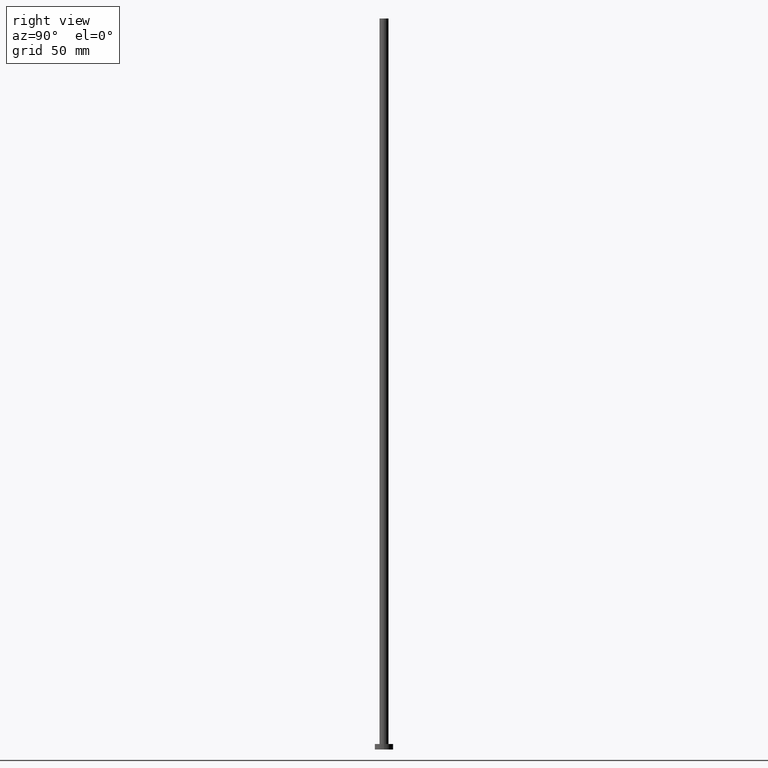
[diagram: clean part render]
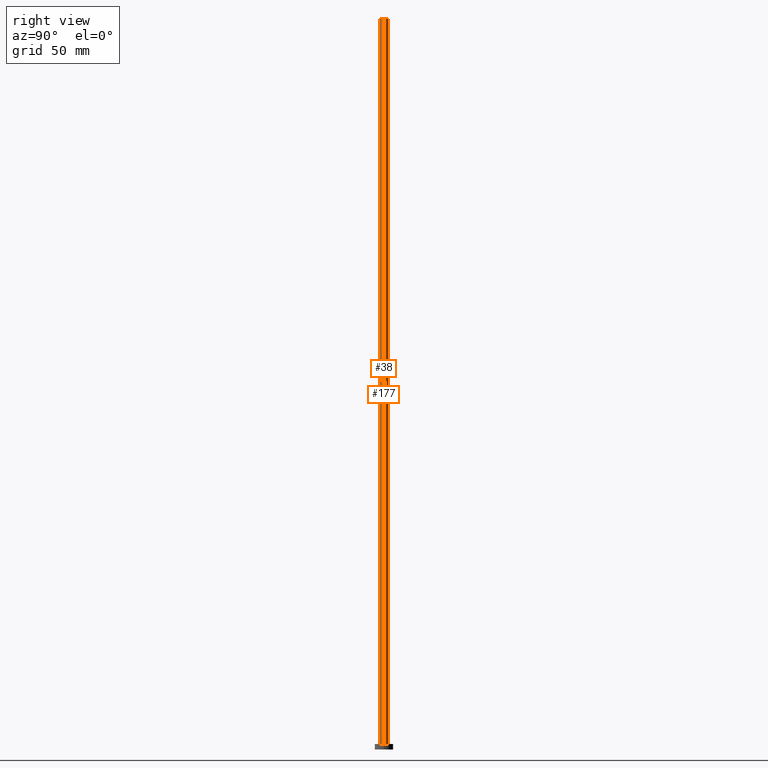
[diagram: same view with one multi-face feature highlighted, each face labeled with its STEP entity id]
A machine part, right view. The highlighted faces form ONE feature: a constant-radius fillet chain: 2 tangent blend faces with common blend radius 2.5 mm. The faces share edges in the B-rep.
Their STEP definitions:
[1] entity #38 (Cylinder):
#12 = CARTESIAN_POINT ( 'NONE',  ( 2.500000000000000000, 3.061616997868383141E-16, 400.0000000000000000 ) ) ;
#25 = LINE ( 'NONE', #45, #145 ) ;
#26 = DIRECTION ( 'NONE',  ( -0.000000000000000000, -0.000000000000000000, -1.000000000000000000 ) ) ;
#33 = AXIS2_PLACEMENT_3D ( 'NONE', #92, #198, #194 ) ;
#38 = ADVANCED_FACE ( 'NONE', ( #132 ), #207, .T. ) ;
#45 = CARTESIAN_POINT ( 'NONE',  ( -2.500000000000000000, 0.000000000000000000, 400.0000000000000000 ) ) ;
#48 = ORIENTED_EDGE ( 'NONE', *, *, #191, .F. ) ;
#54 = EDGE_LOOP ( 'NONE', ( #233, #48, #143, #172 ) ) ;
#80 = CIRCLE ( 'NONE', #33, 2.500000000000000000 ) ;
#82 = CARTESIAN_POINT ( 'NONE',  ( -2.500000000000000000, 0.000000000000000000, 400.0000000000000000 ) ) ;
#87 = EDGE_CURVE ( 'NONE', #126, #93, #80, .T. ) ;
#92 = CARTESIAN_POINT ( 'NONE',  ( 0.000000000000000000, 0.000000000000000000, 3.000000000000000000 ) ) ;
#93 = VERTEX_POINT ( 'NONE', #179 ) ;
#98 = AXIS2_PLACEMENT_3D ( 'NONE', #237, #144, #253 ) ;
#100 = CARTESIAN_POINT ( 'NONE',  ( -2.500000000000000000, 0.000000000000000000, 3.000000000000000000 ) ) ;
#110 = EDGE_CURVE ( 'NONE', #204, #126, #25, .T. ) ;
#111 = DIRECTION ( 'NONE',  ( -1.000000000000000000, 0.000000000000000000, 0.000000000000000000 ) ) ;
#126 = VERTEX_POINT ( 'NONE', #100 ) ;
#132 = FACE_OUTER_BOUND ( 'NONE', #54, .T. ) ;
#140 = CARTESIAN_POINT ( 'NONE',  ( 2.500000000000000000, 3.061616997868383141E-16, 400.0000000000000000 ) ) ;
#143 = ORIENTED_EDGE ( 'NONE', *, *, #110, .T. ) ;
#144 = DIRECTION ( 'NONE',  ( 0.000000000000000000, 0.000000000000000000, 1.000000000000000000 ) ) ;
#145 = VECTOR ( 'NONE', #165, 1000.000000000000000 ) ;
#151 = EDGE_CURVE ( 'NONE', #248, #93, #180, .T. ) ;
#164 = AXIS2_PLACEMENT_3D ( 'NONE', #188, #228, #111 ) ;
#165 = DIRECTION ( 'NONE',  ( -0.000000000000000000, -0.000000000000000000, -1.000000000000000000 ) ) ;
#172 = ORIENTED_EDGE ( 'NONE', *, *, #87, .T. ) ;
#179 = CARTESIAN_POINT ( 'NONE',  ( 2.500000000000000000, 3.061616997868383141E-16, 3.000000000000000000 ) ) ;
#180 = LINE ( 'NONE', #140, #201 ) ;
#188 = CARTESIAN_POINT ( 'NONE',  ( 0.000000000000000000, 0.000000000000000000, 400.0000000000000000 ) ) ;
#191 = EDGE_CURVE ( 'NONE', #204, #248, #209, .T. ) ;
#194 = DIRECTION ( 'NONE',  ( 1.000000000000000000, 0.000000000000000000, 0.000000000000000000 ) ) ;
#198 = DIRECTION ( 'NONE',  ( 0.000000000000000000, 0.000000000000000000, 1.000000000000000000 ) ) ;
#201 = VECTOR ( 'NONE', #26, 1000.000000000000000 ) ;
#204 = VERTEX_POINT ( 'NONE', #82 ) ;
#207 = CYLINDRICAL_SURFACE ( 'NONE', #164, 2.500000000000000000 ) ;
#209 = CIRCLE ( 'NONE', #98, 2.500000000000000000 ) ;
#228 = DIRECTION ( 'NONE',  ( -0.000000000000000000, -0.000000000000000000, -1.000000000000000000 ) ) ;
#233 = ORIENTED_EDGE ( 'NONE', *, *, #151, .F. ) ;
#237 = CARTESIAN_POINT ( 'NONE',  ( 0.000000000000000000, 0.000000000000000000, 400.0000000000000000 ) ) ;
#248 = VERTEX_POINT ( 'NONE', #12 ) ;
#253 = DIRECTION ( 'NONE',  ( 1.000000000000000000, 0.000000000000000000, 0.000000000000000000 ) ) ;
[2] entity #177 (Cylinder):
#5 = CYLINDRICAL_SURFACE ( 'NONE', #163, 2.500000000000000000 ) ;
#9 = EDGE_LOOP ( 'NONE', ( #31, #101, #11, #219 ) ) ;
#11 = ORIENTED_EDGE ( 'NONE', *, *, #19, .T. ) ;
#12 = CARTESIAN_POINT ( 'NONE',  ( 2.500000000000000000, 3.061616997868383141E-16, 400.0000000000000000 ) ) ;
#16 = DIRECTION ( 'NONE',  ( 1.000000000000000000, 0.000000000000000000, 0.000000000000000000 ) ) ;
#19 = EDGE_CURVE ( 'NONE', #93, #126, #141, .T. ) ;
#25 = LINE ( 'NONE', #45, #145 ) ;
#26 = DIRECTION ( 'NONE',  ( -0.000000000000000000, -0.000000000000000000, -1.000000000000000000 ) ) ;
#30 = DIRECTION ( 'NONE',  ( 1.000000000000000000, 0.000000000000000000, 0.000000000000000000 ) ) ;
#31 = ORIENTED_EDGE ( 'NONE', *, *, #162, .F. ) ;
#35 = CARTESIAN_POINT ( 'NONE',  ( 0.000000000000000000, 0.000000000000000000, 3.000000000000000000 ) ) ;
#45 = CARTESIAN_POINT ( 'NONE',  ( -2.500000000000000000, 0.000000000000000000, 400.0000000000000000 ) ) ;
#49 = FACE_OUTER_BOUND ( 'NONE', #9, .T. ) ;
#55 = AXIS2_PLACEMENT_3D ( 'NONE', #124, #202, #30 ) ;
#73 = CIRCLE ( 'NONE', #55, 2.500000000000000000 ) ;
#82 = CARTESIAN_POINT ( 'NONE',  ( -2.500000000000000000, 0.000000000000000000, 400.0000000000000000 ) ) ;
#91 = CARTESIAN_POINT ( 'NONE',  ( 0.000000000000000000, 0.000000000000000000, 400.0000000000000000 ) ) ;
#93 = VERTEX_POINT ( 'NONE', #179 ) ;
#100 = CARTESIAN_POINT ( 'NONE',  ( -2.500000000000000000, 0.000000000000000000, 3.000000000000000000 ) ) ;
#101 = ORIENTED_EDGE ( 'NONE', *, *, #151, .T. ) ;
#104 = DIRECTION ( 'NONE',  ( -0.000000000000000000, -0.000000000000000000, -1.000000000000000000 ) ) ;
#109 = DIRECTION ( 'NONE',  ( 0.000000000000000000, 0.000000000000000000, 1.000000000000000000 ) ) ;
#110 = EDGE_CURVE ( 'NONE', #204, #126, #25, .T. ) ;
#124 = CARTESIAN_POINT ( 'NONE',  ( 0.000000000000000000, 0.000000000000000000, 400.0000000000000000 ) ) ;
#126 = VERTEX_POINT ( 'NONE', #100 ) ;
#129 = AXIS2_PLACEMENT_3D ( 'NONE', #35, #109, #16 ) ;
#140 = CARTESIAN_POINT ( 'NONE',  ( 2.500000000000000000, 3.061616997868383141E-16, 400.0000000000000000 ) ) ;
#141 = CIRCLE ( 'NONE', #129, 2.500000000000000000 ) ;
#145 = VECTOR ( 'NONE', #165, 1000.000000000000000 ) ;
#151 = EDGE_CURVE ( 'NONE', #248, #93, #180, .T. ) ;
#162 = EDGE_CURVE ( 'NONE', #248, #204, #73, .T. ) ;
#163 = AXIS2_PLACEMENT_3D ( 'NONE', #91, #104, #183 ) ;
#165 = DIRECTION ( 'NONE',  ( -0.000000000000000000, -0.000000000000000000, -1.000000000000000000 ) ) ;
#177 = ADVANCED_FACE ( 'NONE', ( #49 ), #5, .T. ) ;
#179 = CARTESIAN_POINT ( 'NONE',  ( 2.500000000000000000, 3.061616997868383141E-16, 3.000000000000000000 ) ) ;
#180 = LINE ( 'NONE', #140, #201 ) ;
#183 = DIRECTION ( 'NONE',  ( -1.000000000000000000, 0.000000000000000000, 0.000000000000000000 ) ) ;
#201 = VECTOR ( 'NONE', #26, 1000.000000000000000 ) ;
#202 = DIRECTION ( 'NONE',  ( 0.000000000000000000, 0.000000000000000000, 1.000000000000000000 ) ) ;
#204 = VERTEX_POINT ( 'NONE', #82 ) ;
#219 = ORIENTED_EDGE ( 'NONE', *, *, #110, .F. ) ;
#248 = VERTEX_POINT ( 'NONE', #12 ) ;